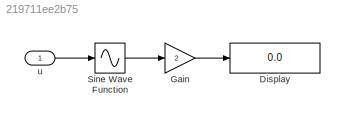
MODEL slx_219711ee2b75
KIND model
BLOCK [Display] Display
  Decimation = 1
  Lockdown = off
  Ports = [1]
BLOCK [Gain] Gain
  Gain = 2
  OutDataTypeStr = Inherit: Inherit via internal rule
  ParamDataTypeStr = Inherit: Inherit via internal rule
  SaturateOnIntegerOverflow = off
BLOCK [Sin] Sine Wave Function
  Ports = [1, 1]
  SampleTime = 0
  TimeSource = Use external signal
BLOCK [Inport] u
  IconDisplay = Port number
LINE Gain:1 -> Display:1
LINE Sine Wave Function:1 -> Gain:1
LINE u:1 -> Sine Wave Function:1
